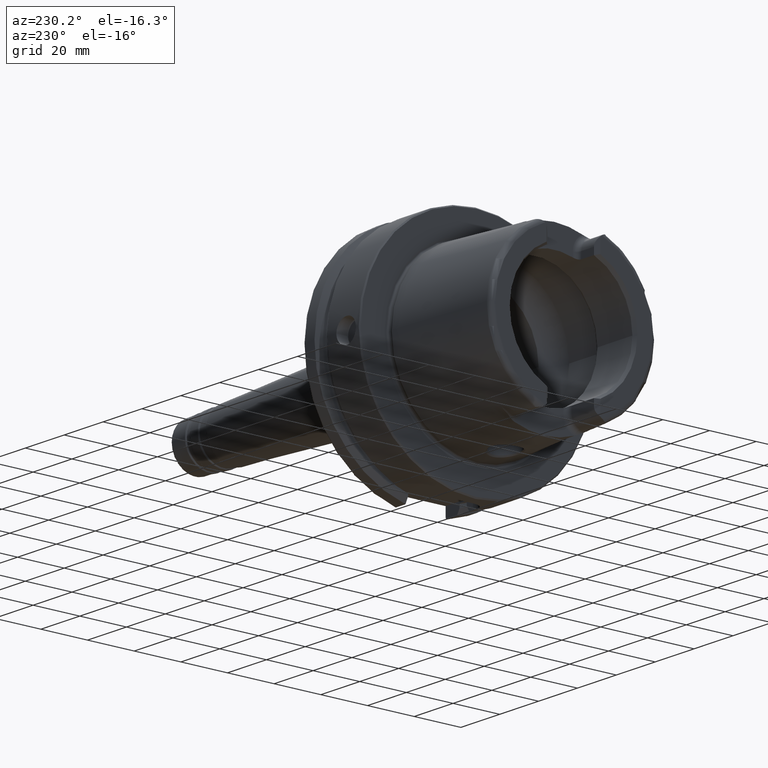
[diagram: clean part render]
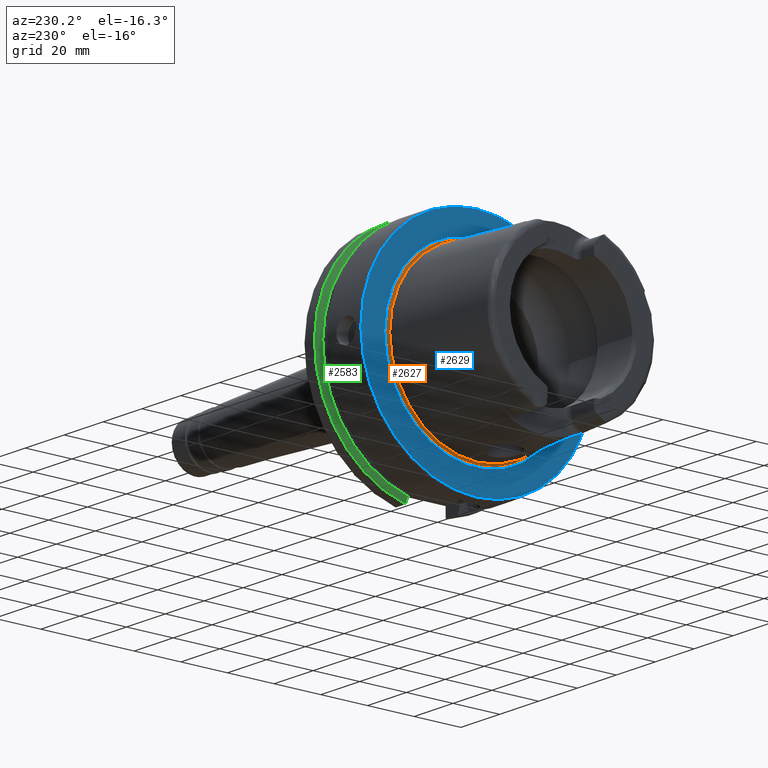
[diagram: same view with three faces highlighted in distinct colors, each labeled with its STEP entity id]
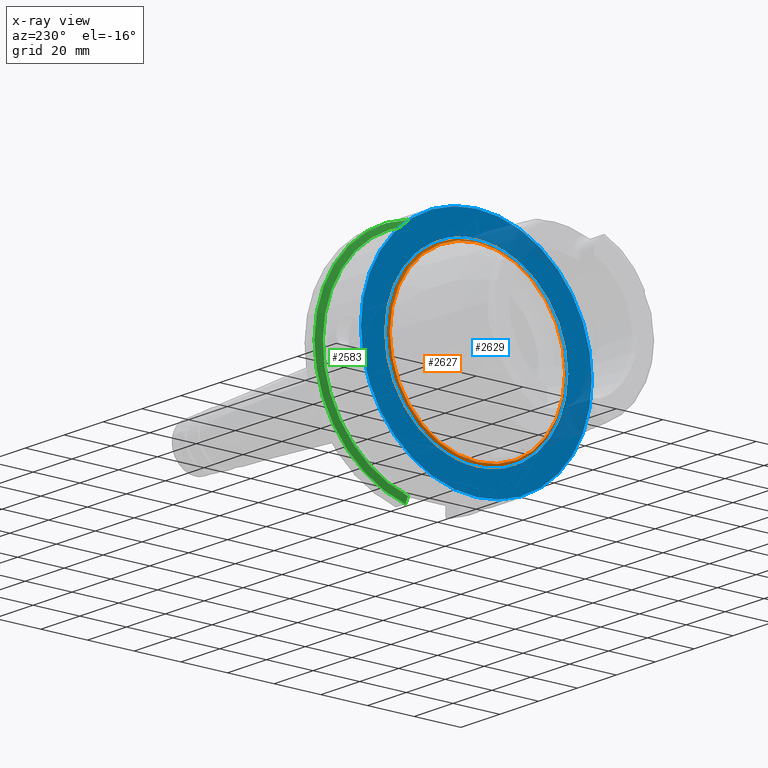
[diagram: x-ray of the same camera — body ghosted, the three highlighted faces saturated]
A machine part, auxiliary view with three faces highlighted in distinct colors.
The next image is the same camera in x-ray (body ghosted, the three faces saturated) — at least one of them is partly hidden behind the body in this view.
Their STEP definitions:

[orange] entity #2627 — the highlighted toroidal blend (fillet) surface has major radius 38.5073 mm and minor (blend) radius 0.8 mm.
#550=FACE_OUTER_BOUND('',#694,.T.);
#694=EDGE_LOOP('',(#2404,#2405,#2406,#2407,#2408,#2409,#2410,#2411));
#915=CIRCLE('',#2995,37.7073016032064);
#916=CIRCLE('',#2996,0.8);
#917=CIRCLE('',#2997,38.6186400839745);
#918=CIRCLE('',#2998,38.6186400839745);
#919=CIRCLE('',#2999,38.6186400839745);
#920=CIRCLE('',#3000,37.7073016032064);
#921=CIRCLE('',#3001,37.7073016032064);
#1211=VERTEX_POINT('',#5545);
#1212=VERTEX_POINT('',#5546);
#1213=VERTEX_POINT('',#5548);
#1214=VERTEX_POINT('',#5550);
#1215=VERTEX_POINT('',#5552);
#1216=VERTEX_POINT('',#5555);
#1616=EDGE_CURVE('',#1211,#1212,#915,.T.);
#1617=EDGE_CURVE('',#1212,#1213,#916,.T.);
#1618=EDGE_CURVE('',#1214,#1213,#917,.T.);
#1619=EDGE_CURVE('',#1215,#1214,#918,.T.);
#1620=EDGE_CURVE('',#1213,#1215,#919,.T.);
#1621=EDGE_CURVE('',#1212,#1216,#920,.T.);
#1622=EDGE_CURVE('',#1216,#1211,#921,.T.);
#2404=ORIENTED_EDGE('',*,*,#1616,.T.);
#2405=ORIENTED_EDGE('',*,*,#1617,.T.);
#2406=ORIENTED_EDGE('',*,*,#1618,.F.);
#2407=ORIENTED_EDGE('',*,*,#1619,.F.);
#2408=ORIENTED_EDGE('',*,*,#1620,.F.);
#2409=ORIENTED_EDGE('',*,*,#1617,.F.);
#2410=ORIENTED_EDGE('',*,*,#1621,.T.);
#2411=ORIENTED_EDGE('',*,*,#1622,.T.);
#2503=TOROIDAL_SURFACE('',#2994,38.5073016032064,0.8);
#2627=ADVANCED_FACE('',(#550),#2503,.F.);
#2994=AXIS2_PLACEMENT_3D('',#5544,#3806,#3807);
#2995=AXIS2_PLACEMENT_3D('',#5547,#3808,#3809);
#2996=AXIS2_PLACEMENT_3D('',#5549,#3810,#3811);
#2997=AXIS2_PLACEMENT_3D('',#5551,#3812,#3813);
#2998=AXIS2_PLACEMENT_3D('',#5553,#3814,#3815);
#2999=AXIS2_PLACEMENT_3D('',#5554,#3816,#3817);
#3000=AXIS2_PLACEMENT_3D('',#5556,#3818,#3819);
#3001=AXIS2_PLACEMENT_3D('',#5557,#3820,#3821);
#3806=DIRECTION('center_axis',(1.,0.,0.));
#3807=DIRECTION('ref_axis',(0.,0.,-1.));
#3808=DIRECTION('center_axis',(1.,0.,0.));
#3809=DIRECTION('ref_axis',(0.,0.,-1.));
#3810=DIRECTION('center_axis',(0.,-1.,-1.22464679914735E-16));
#3811=DIRECTION('ref_axis',(0.,-1.22464679914735E-16,1.));
#3812=DIRECTION('center_axis',(1.,0.,0.));
#3813=DIRECTION('ref_axis',(0.,0.,-1.));
#3814=DIRECTION('center_axis',(1.,0.,0.));
#3815=DIRECTION('ref_axis',(0.,0.,-1.));
#3816=DIRECTION('center_axis',(1.,0.,0.));
#3817=DIRECTION('ref_axis',(0.,0.,-1.));
#3818=DIRECTION('center_axis',(1.,0.,0.));
#3819=DIRECTION('ref_axis',(0.,0.,-1.));
#3820=DIRECTION('center_axis',(1.,0.,0.));
#3821=DIRECTION('ref_axis',(0.,0.,-1.));
#5544=CARTESIAN_POINT('Origin',(-0.7,0.,0.));
#5545=CARTESIAN_POINT('',(-0.7,37.7073016032064,0.));
#5546=CARTESIAN_POINT('',(-0.7,-4.61781262128506E-15,37.7073016032064));
#5547=CARTESIAN_POINT('Origin',(-0.7,0.,0.));
#5548=CARTESIAN_POINT('',(0.0922144549932559,-4.7294193966263E-15,38.6186400839745));
#5549=CARTESIAN_POINT('Origin',(-0.7,-4.71578436521685E-15,38.5073016032064));
#5550=CARTESIAN_POINT('',(0.0922144549932559,38.6186400839745,0.));
#5551=CARTESIAN_POINT('Origin',(0.0922144549932559,0.,0.));
#5552=CARTESIAN_POINT('',(0.0922144549932577,-38.6186400839745,-4.7294193966263E-15));
#5553=CARTESIAN_POINT('Origin',(0.0922144549932559,0.,0.));
#5554=CARTESIAN_POINT('Origin',(0.0922144549932559,0.,0.));
#5555=CARTESIAN_POINT('',(-0.7,-37.7073016032064,-4.61781262128506E-15));
#5556=CARTESIAN_POINT('Origin',(-0.7,0.,0.));
#5557=CARTESIAN_POINT('Origin',(-0.7,0.,0.));

[blue] entity #2629 — the highlighted planar face has unit normal (-1, 0, 0).
#127=FACE_BOUND('',#697,.T.);
#163=PLANE('',#3005);
#552=FACE_OUTER_BOUND('',#696,.T.);
#696=EDGE_LOOP('',(#2419,#2420));
#697=EDGE_LOOP('',(#2421,#2422));
#922=CIRCLE('',#3003,39.2747800249997);
#923=CIRCLE('',#3004,39.2747800249997);
#924=CIRCLE('',#3006,49.5);
#925=CIRCLE('',#3007,49.5);
#1217=VERTEX_POINT('',#5559);
#1218=VERTEX_POINT('',#5561);
#1219=VERTEX_POINT('',#5565);
#1220=VERTEX_POINT('',#5566);
#1624=EDGE_CURVE('',#1218,#1217,#922,.T.);
#1625=EDGE_CURVE('',#1217,#1218,#923,.T.);
#1626=EDGE_CURVE('',#1219,#1220,#924,.T.);
#1627=EDGE_CURVE('',#1220,#1219,#925,.T.);
#2419=ORIENTED_EDGE('',*,*,#1626,.F.);
#2420=ORIENTED_EDGE('',*,*,#1627,.F.);
#2421=ORIENTED_EDGE('',*,*,#1624,.T.);
#2422=ORIENTED_EDGE('',*,*,#1625,.T.);
#2629=ADVANCED_FACE('',(#552,#127),#163,.T.);
#3003=AXIS2_PLACEMENT_3D('',#5562,#3825,#3826);
#3004=AXIS2_PLACEMENT_3D('',#5563,#3827,#3828);
#3005=AXIS2_PLACEMENT_3D('',#5564,#3829,#3830);
#3006=AXIS2_PLACEMENT_3D('',#5567,#3831,#3832);
#3007=AXIS2_PLACEMENT_3D('',#5568,#3833,#3834);
#3825=DIRECTION('center_axis',(1.,0.,0.));
#3826=DIRECTION('ref_axis',(0.,0.,-1.));
#3827=DIRECTION('center_axis',(1.,0.,0.));
#3828=DIRECTION('ref_axis',(0.,0.,-1.));
#3829=DIRECTION('center_axis',(-1.,0.,0.));
#3830=DIRECTION('ref_axis',(0.,0.,1.));
#3831=DIRECTION('center_axis',(1.,0.,0.));
#3832=DIRECTION('ref_axis',(0.,0.,-1.));
#3833=DIRECTION('center_axis',(1.,0.,0.));
#3834=DIRECTION('ref_axis',(0.,0.,-1.));
#5559=CARTESIAN_POINT('',(-1.11889664200504E-15,-39.2747800249997,-4.80977336448322E-15));
#5561=CARTESIAN_POINT('',(0.,39.2747800249997,0.));
#5562=CARTESIAN_POINT('Origin',(0.,0.,0.));
#5563=CARTESIAN_POINT('Origin',(0.,0.,0.));
#5564=CARTESIAN_POINT('Origin',(0.,49.5,0.));
#5565=CARTESIAN_POINT('',(0.,49.5,0.));
#5566=CARTESIAN_POINT('',(1.2490009027033E-15,-49.5,-6.0620016557794E-15));
#5567=CARTESIAN_POINT('Origin',(0.,0.,0.));
#5568=CARTESIAN_POINT('Origin',(0.,0.,0.));

[green] entity #2583 — the highlighted conical surface has half-angle 60 deg.
#24=(
BOUNDED_CURVE()
B_SPLINE_CURVE(2,(#5238,#5239,#5240),.UNSPECIFIED.,.F.,.F.)
B_SPLINE_CURVE_WITH_KNOTS((3,3),(0.,0.28292349080556),.UNSPECIFIED.)
CURVE()
GEOMETRIC_REPRESENTATION_ITEM()
RATIONAL_B_SPLINE_CURVE((1.,1.0003193410929,1.))
REPRESENTATION_ITEM('')
);
#27=(
BOUNDED_CURVE()
B_SPLINE_CURVE(2,(#5329,#5330,#5331),.UNSPECIFIED.,.F.,.F.)
B_SPLINE_CURVE_WITH_KNOTS((3,3),(0.,0.281931851964124),.UNSPECIFIED.)
CURVE()
GEOMETRIC_REPRESENTATION_ITEM()
RATIONAL_B_SPLINE_CURVE((1.,1.00031639802473,1.))
REPRESENTATION_ITEM('')
);
#107=CONICAL_SURFACE('',#2898,48.7987976320958,1.0471975511966);
#506=FACE_OUTER_BOUND('',#647,.T.);
#647=EDGE_LOOP('',(#2170,#2171,#2172,#2173));
#861=CIRCLE('',#2895,50.);
#863=CIRCLE('',#2899,47.5975952641917);
#1158=VERTEX_POINT('',#5235);
#1159=VERTEX_POINT('',#5237);
#1172=VERTEX_POINT('',#5321);
#1173=VERTEX_POINT('',#5327);
#1514=EDGE_CURVE('',#1159,#1158,#24,.T.);
#1535=EDGE_CURVE('',#1159,#1172,#861,.T.);
#1538=EDGE_CURVE('',#1158,#1173,#863,.T.);
#1539=EDGE_CURVE('',#1173,#1172,#27,.T.);
#2170=ORIENTED_EDGE('',*,*,#1514,.T.);
#2171=ORIENTED_EDGE('',*,*,#1538,.T.);
#2172=ORIENTED_EDGE('',*,*,#1539,.T.);
#2173=ORIENTED_EDGE('',*,*,#1535,.F.);
#2583=ADVANCED_FACE('',(#506),#107,.T.);
#2895=AXIS2_PLACEMENT_3D('',#5322,#3589,#3590);
#2898=AXIS2_PLACEMENT_3D('',#5326,#3596,#3597);
#2899=AXIS2_PLACEMENT_3D('',#5328,#3598,#3599);
#3589=DIRECTION('center_axis',(1.,0.,0.));
#3590=DIRECTION('ref_axis',(0.,0.,-1.));
#3596=DIRECTION('center_axis',(1.,0.,0.));
#3597=DIRECTION('ref_axis',(0.,1.,0.));
#3598=DIRECTION('center_axis',(1.,0.,0.));
#3599=DIRECTION('ref_axis',(0.,0.,-1.));
#5235=CARTESIAN_POINT('',(21.875,11.,-46.3090819919138));
#5237=CARTESIAN_POINT('',(23.2620290209214,11.,-48.7749935930288));
#5238=CARTESIAN_POINT('Ctrl Pts',(23.2620290209214,11.,-48.7749935930288));
#5239=CARTESIAN_POINT('Ctrl Pts',(22.5505288964237,11.,-47.5116880808802));
#5240=CARTESIAN_POINT('Ctrl Pts',(21.875,11.,-46.3090819919138));
#5321=CARTESIAN_POINT('',(23.2620290209214,10.,48.9897948556636));
#5322=CARTESIAN_POINT('Origin',(23.2620290209214,0.,0.));
#5326=CARTESIAN_POINT('Origin',(22.5685145104607,0.,0.));
#5327=CARTESIAN_POINT('',(21.875,10.,46.5352670018535));
#5328=CARTESIAN_POINT('Origin',(21.875,0.,0.));
#5329=CARTESIAN_POINT('Ctrl Pts',(21.875,10.,46.5352670018535));
#5330=CARTESIAN_POINT('Ctrl Pts',(22.5506945724782,10.,47.7323213251992));
#5331=CARTESIAN_POINT('Ctrl Pts',(23.2620290209214,10.,48.9897948556636));